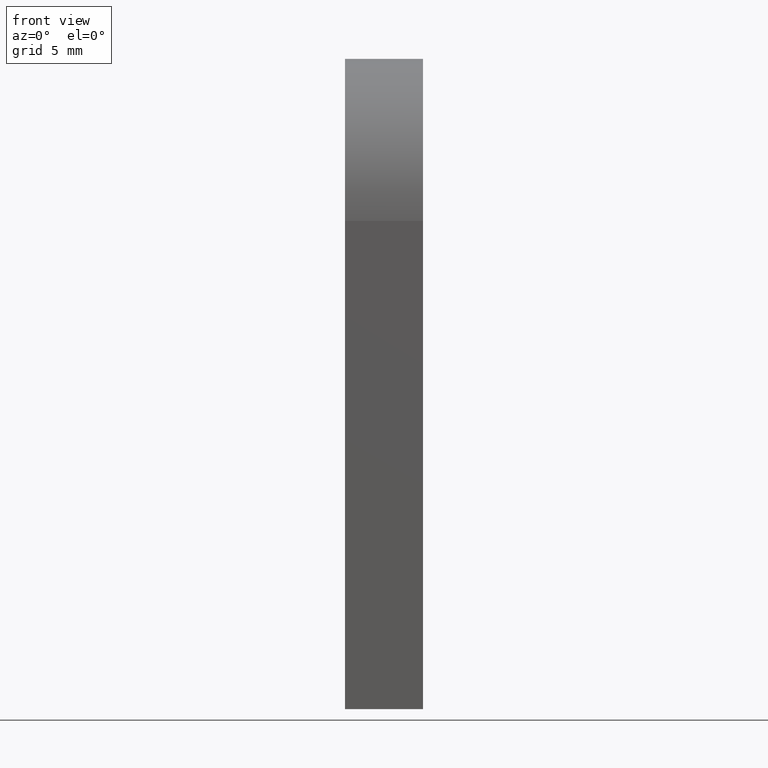
[diagram: clean part render]
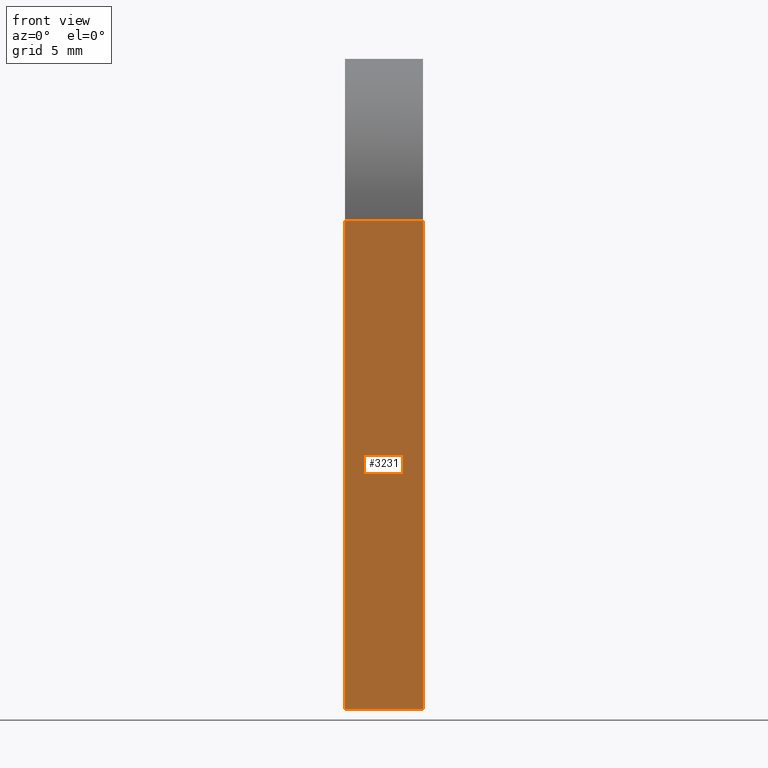
[diagram: same view with one face highlighted and labeled with its STEP entity id]
A machine part, front view. The second image highlights one B-rep face of the part: STEP entity #3231.
In plain terms, the highlighted planar face has unit normal (0, -1, -0).
Its self-contained STEP definition (entity closure, byte-faithful):
#512 = ORIENTED_EDGE ( 'NONE', *, *, #5456, .F. ) ;
#797 = CARTESIAN_POINT ( 'NONE',  ( 3.000000000000000000, -12.50000000000000000, -3.367778697655221307E-15 ) ) ;
#1223 = CARTESIAN_POINT ( 'NONE',  ( 3.000000000000000000, -12.50000000000000000, -3.367778697655221307E-15 ) ) ;
#1425 = VERTEX_POINT ( 'NONE', #11411 ) ;
#1692 = DIRECTION ( 'NONE',  ( 0.000000000000000000, 4.625929269271485174E-17, -1.000000000000000000 ) ) ;
#2093 = VERTEX_POINT ( 'NONE', #797 ) ;
#2157 = DIRECTION ( 'NONE',  ( 0.000000000000000000, -4.625929269271485791E-17, 1.000000000000000000 ) ) ;
#2326 = VERTEX_POINT ( 'NONE', #10321 ) ;
#3231 = ADVANCED_FACE ( 'NONE', ( #10028 ), #5525, .T. ) ;
#3411 = EDGE_CURVE ( 'NONE', #1425, #2326, #6321, .T. ) ;
#3563 = DIRECTION ( 'NONE',  ( 0.000000000000000000, -1.000000000000000000, -4.625929269271485174E-17 ) ) ;
#3796 = VECTOR ( 'NONE', #9735, 1000.000000000000000 ) ;
#3846 = LINE ( 'NONE', #1223, #8898 ) ;
#3954 = ORIENTED_EDGE ( 'NONE', *, *, #3411, .T. ) ;
#5456 = EDGE_CURVE ( 'NONE', #9137, #2326, #11800, .T. ) ;
#5525 = PLANE ( 'NONE',  #10578 ) ;
#6012 = EDGE_CURVE ( 'NONE', #2093, #1425, #3846, .T. ) ;
#6081 = CARTESIAN_POINT ( 'NONE',  ( 3.000000000000000000, -12.50000000000000000, -3.367778697655221307E-15 ) ) ;
#6321 = LINE ( 'NONE', #7792, #3796 ) ;
#6428 = CARTESIAN_POINT ( 'NONE',  ( -3.000000000000000000, -12.50000000000000000, -3.367778697655221307E-15 ) ) ;
#6837 = LINE ( 'NONE', #6081, #7732 ) ;
#6892 = DIRECTION ( 'NONE',  ( -1.000000000000000000, -0.000000000000000000, -0.000000000000000000 ) ) ;
#7318 = CARTESIAN_POINT ( 'NONE',  ( -3.000000000000000000, -12.50000000000000000, -3.367778697655221307E-15 ) ) ;
#7732 = VECTOR ( 'NONE', #6892, 1000.000000000000000 ) ;
#7792 = CARTESIAN_POINT ( 'NONE',  ( 3.000000000000000000, -12.50000000000000178, 37.50000000000000000 ) ) ;
#8898 = VECTOR ( 'NONE', #2157, 1000.000000000000000 ) ;
#9093 = EDGE_LOOP ( 'NONE', ( #512, #9783, #10366, #3954 ) ) ;
#9137 = VERTEX_POINT ( 'NONE', #7318 ) ;
#9268 = VECTOR ( 'NONE', #9414, 1000.000000000000000 ) ;
#9414 = DIRECTION ( 'NONE',  ( 0.000000000000000000, -4.625929269271485791E-17, 1.000000000000000000 ) ) ;
#9735 = DIRECTION ( 'NONE',  ( -1.000000000000000000, -0.000000000000000000, -0.000000000000000000 ) ) ;
#9783 = ORIENTED_EDGE ( 'NONE', *, *, #11732, .F. ) ;
#10028 = FACE_OUTER_BOUND ( 'NONE', #9093, .T. ) ;
#10321 = CARTESIAN_POINT ( 'NONE',  ( -3.000000000000000000, -12.50000000000000178, 37.50000000000000000 ) ) ;
#10366 = ORIENTED_EDGE ( 'NONE', *, *, #6012, .T. ) ;
#10578 = AXIS2_PLACEMENT_3D ( 'NONE', #11081, #3563, #1692 ) ;
#11081 = CARTESIAN_POINT ( 'NONE',  ( 3.000000000000000000, -12.50000000000000000, -3.367778697655221307E-15 ) ) ;
#11411 = CARTESIAN_POINT ( 'NONE',  ( 3.000000000000000000, -12.50000000000000178, 37.50000000000000000 ) ) ;
#11732 = EDGE_CURVE ( 'NONE', #2093, #9137, #6837, .T. ) ;
#11800 = LINE ( 'NONE', #6428, #9268 ) ;